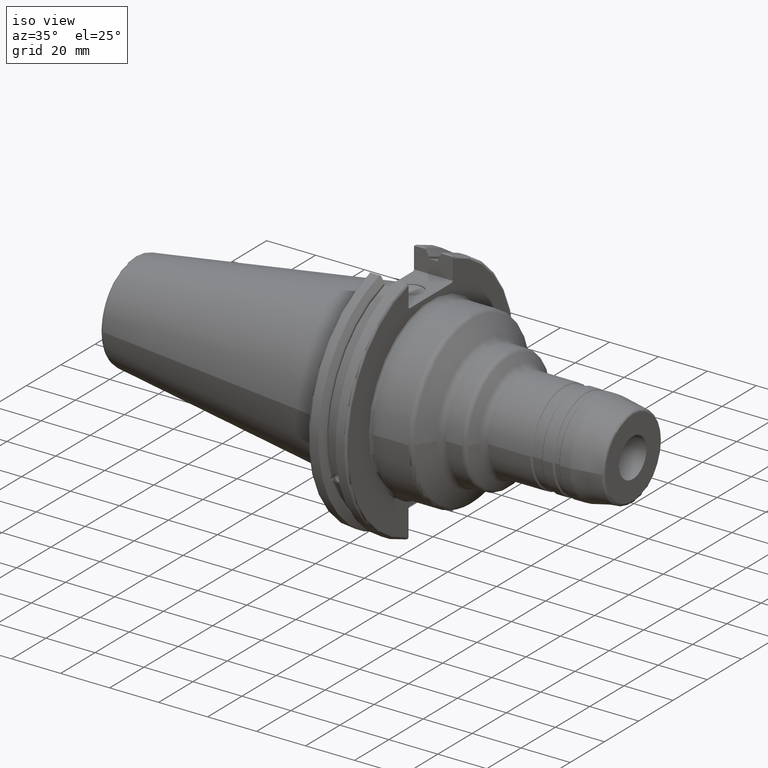
[diagram: clean part render]
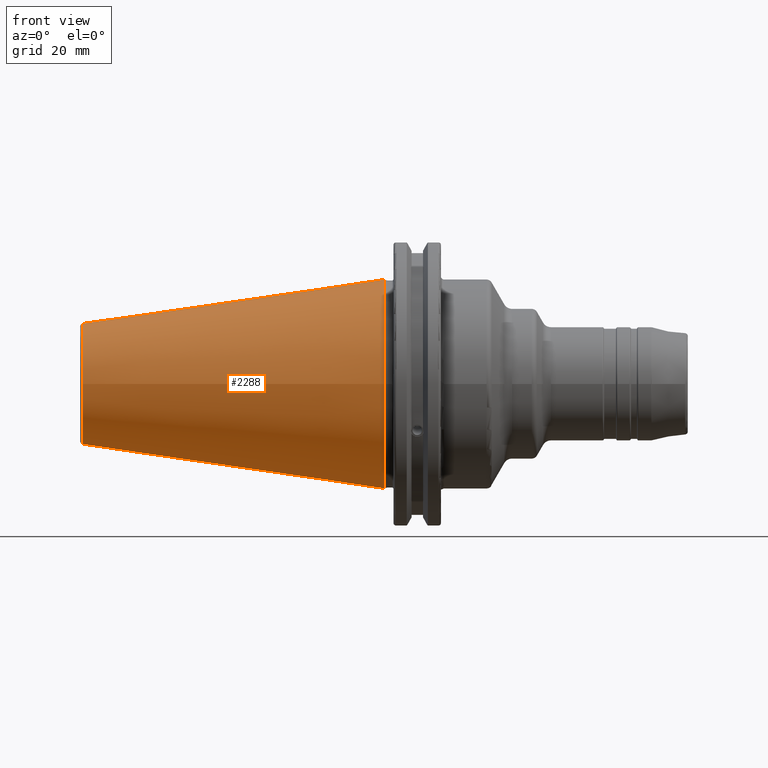
[diagram: tour spotlight — one face highlighted and labeled with its STEP entity id]
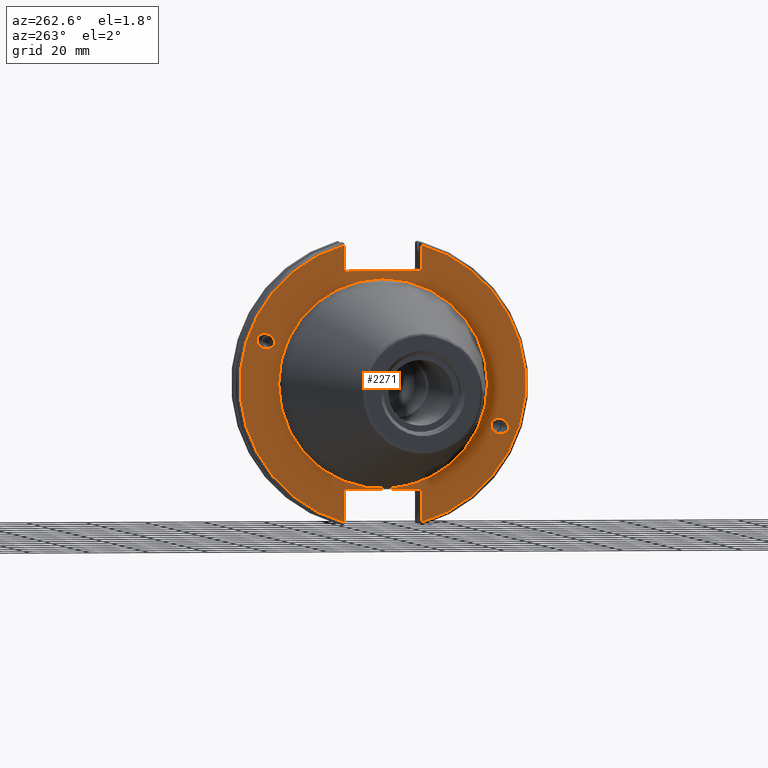
[diagram: tour spotlight — one face highlighted and labeled with its STEP entity id]
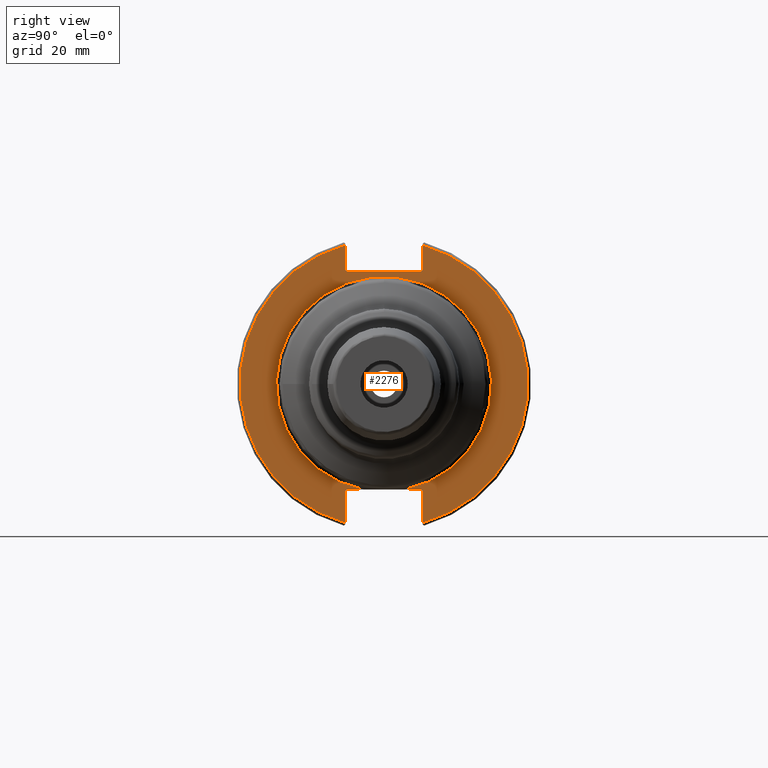
[diagram: tour spotlight — one face highlighted and labeled with its STEP entity id]
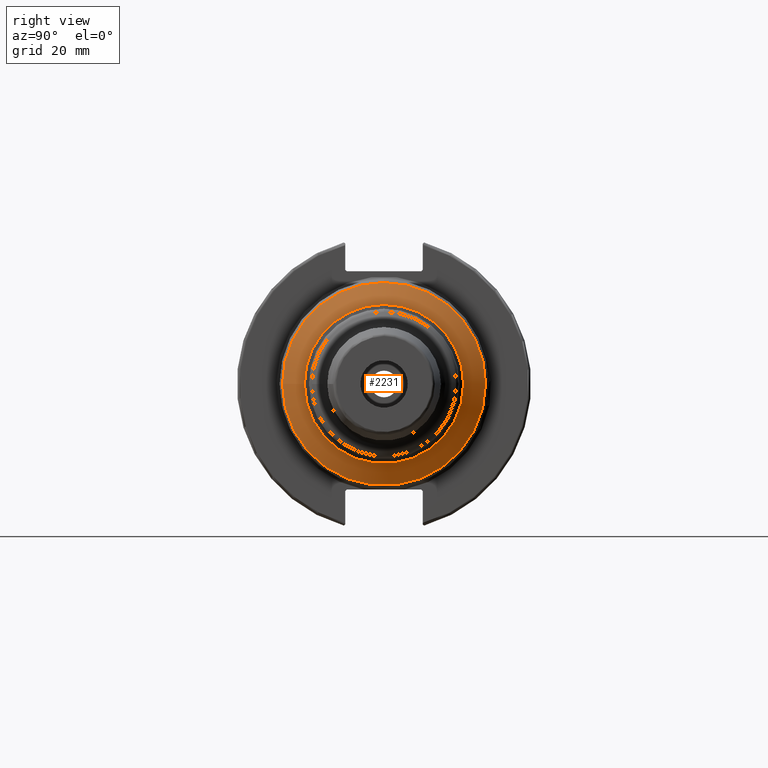
[diagram: tour spotlight — one face highlighted and labeled with its STEP entity id]
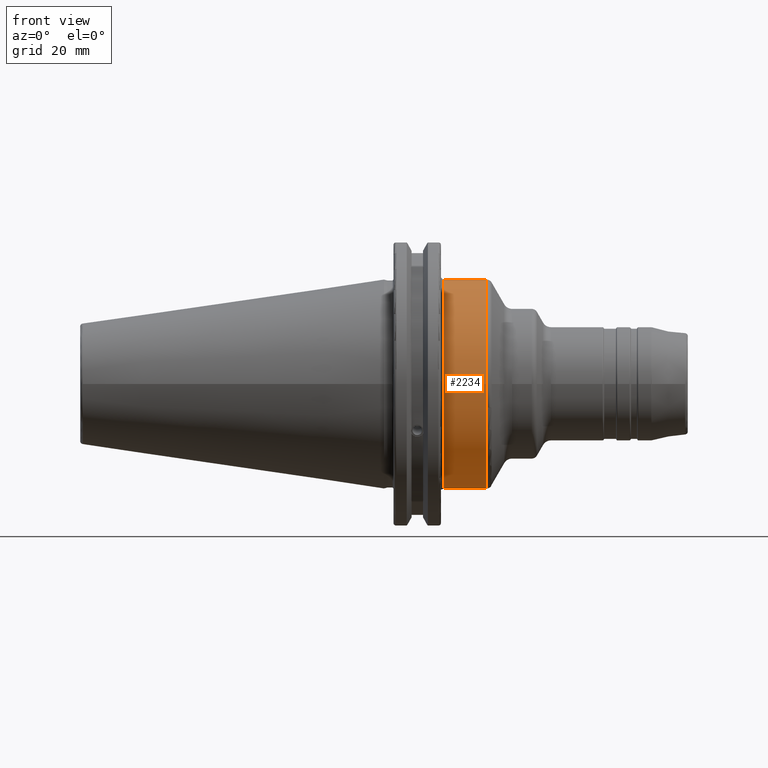
[diagram: tour spotlight — one face highlighted and labeled with its STEP entity id]
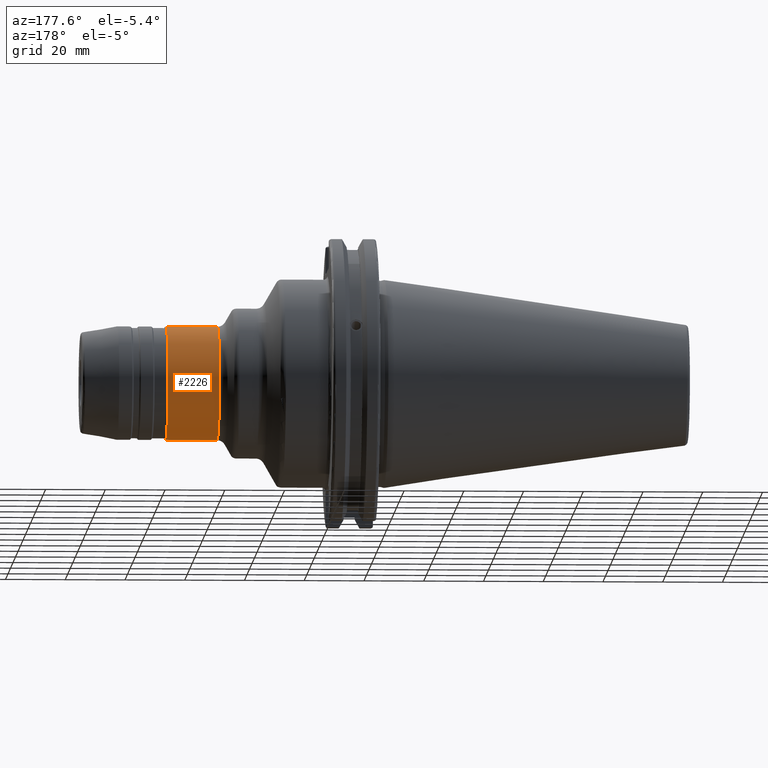
[diagram: tour spotlight — one face highlighted and labeled with its STEP entity id]
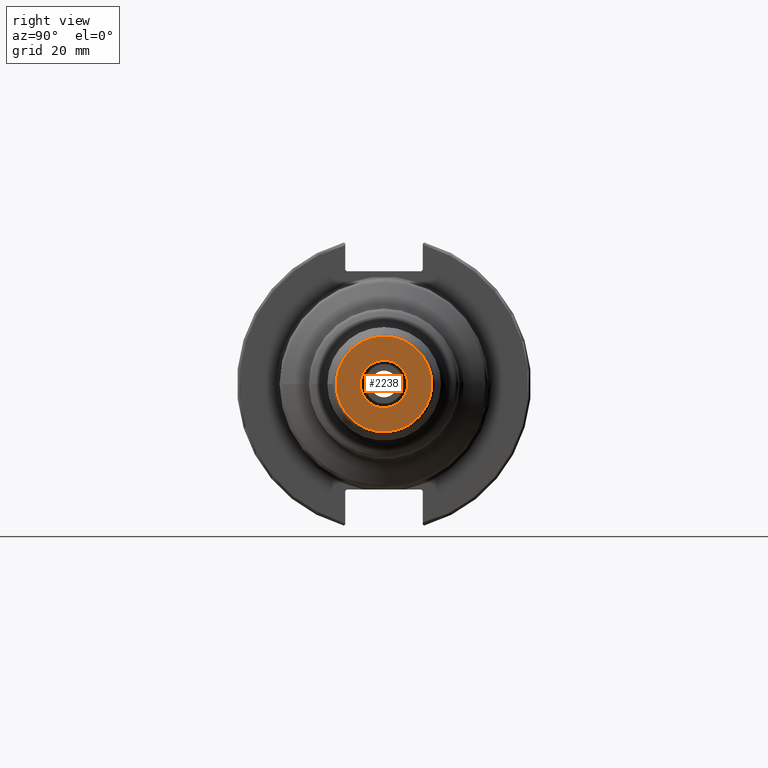
[diagram: tour spotlight — one face highlighted and labeled with its STEP entity id]
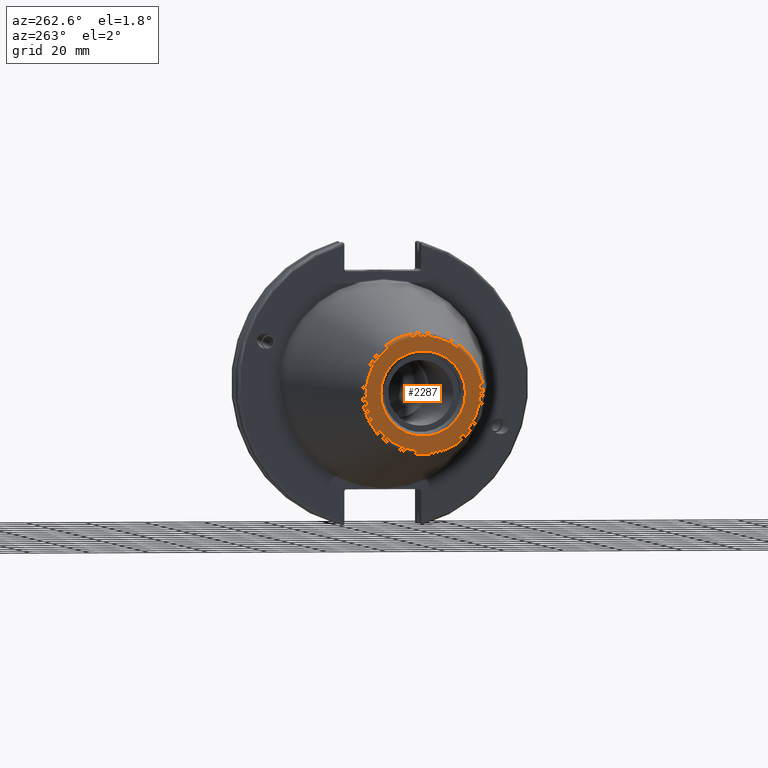
[diagram: tour spotlight — one face highlighted and labeled with its STEP entity id]
A machine part: a face-by-face anatomy tour. The part has 112 B-rep faces; the first image is the clean iso view, then the 8 largest visible faces are spotlighted one at a time (largest first), each with its STEP entity span.

Face 1 — front view, entity #2288. In plain terms, the highlighted conical surface has half-angle 8.297 deg.
Definition (entity closure, byte-faithful):
#164=CONICAL_SURFACE('',#2602,27.5166666666666,0.14481249823894);
#253=FACE_OUTER_BOUND('',#382,.T.);
#382=EDGE_LOOP('',(#2023,#2024,#2025,#2026,#2027,#2028,#2029));
#500=LINE('',#4514,#607);
#607=VECTOR('',#3273,27.5166666666666);
#799=CIRCLE('',#2593,20.233121911427);
#800=CIRCLE('',#2594,20.233121911427);
#804=CIRCLE('',#2598,20.233121911427);
#807=CIRCLE('',#2603,34.925);
#808=CIRCLE('',#2604,34.925);
#1062=VERTEX_POINT('',#4493);
#1063=VERTEX_POINT('',#4494);
#1064=VERTEX_POINT('',#4496);
#1069=VERTEX_POINT('',#4510);
#1070=VERTEX_POINT('',#4511);
#1400=EDGE_CURVE('',#1062,#1063,#799,.T.);
#1401=EDGE_CURVE('',#1063,#1064,#800,.T.);
#1405=EDGE_CURVE('',#1064,#1062,#804,.T.);
#1408=EDGE_CURVE('',#1069,#1070,#807,.T.);
#1409=EDGE_CURVE('',#1070,#1069,#808,.T.);
#1410=EDGE_CURVE('',#1070,#1063,#500,.T.);
#2023=ORIENTED_EDGE('',*,*,#1408,.F.);
#2024=ORIENTED_EDGE('',*,*,#1409,.F.);
#2025=ORIENTED_EDGE('',*,*,#1410,.T.);
#2026=ORIENTED_EDGE('',*,*,#1400,.F.);
#2027=ORIENTED_EDGE('',*,*,#1405,.F.);
#2028=ORIENTED_EDGE('',*,*,#1401,.F.);
#2029=ORIENTED_EDGE('',*,*,#1410,.F.);
#2288=ADVANCED_FACE('',(#253),#164,.T.);
#2593=AXIS2_PLACEMENT_3D('',#4495,#3249,#3250);
#2594=AXIS2_PLACEMENT_3D('',#4497,#3251,#3252);
#2598=AXIS2_PLACEMENT_3D('',#4503,#3259,#3260);
#2602=AXIS2_PLACEMENT_3D('',#4509,#3267,#3268);
#2603=AXIS2_PLACEMENT_3D('',#4512,#3269,#3270);
#2604=AXIS2_PLACEMENT_3D('',#4513,#3271,#3272);
#3249=DIRECTION('center_axis',(-1.,0.,0.));
#3250=DIRECTION('ref_axis',(0.,-1.,3.06161699786838E-17));
#3251=DIRECTION('center_axis',(-1.,0.,0.));
#3252=DIRECTION('ref_axis',(0.,-1.,3.06161699786838E-17));
#3259=DIRECTION('center_axis',(-1.,0.,0.));
#3260=DIRECTION('ref_axis',(0.,-1.,3.06161699786838E-17));
#3267=DIRECTION('center_axis',(1.,0.,0.));
#3268=DIRECTION('ref_axis',(0.,1.,0.));
#3269=DIRECTION('center_axis',(1.,0.,0.));
#3270=DIRECTION('ref_axis',(0.,0.,-1.));
#3271=DIRECTION('center_axis',(1.,0.,0.));
#3272=DIRECTION('ref_axis',(0.,0.,-1.));
#3273=DIRECTION('',(-0.989532981063281,0.144306893071729,1.76724974695192E-17));
#4493=CARTESIAN_POINT('',(-100.744306893072,20.233121911427,-6.19460699639681E-15));
#4494=CARTESIAN_POINT('',(-100.744306893072,-20.233121911427,-2.47784279855872E-15));
#4495=CARTESIAN_POINT('Origin',(-100.744306893072,0.,-3.09730349819841E-15));
#4496=CARTESIAN_POINT('',(-100.744306893072,-2.47784279855872E-15,20.233121911427));
#4497=CARTESIAN_POINT('Origin',(-100.744306893072,0.,-3.09730349819841E-15));
#4503=CARTESIAN_POINT('Origin',(-100.744306893072,0.,-3.09730349819841E-15));
#4509=CARTESIAN_POINT('Origin',(-50.8,0.,0.));
#4510=CARTESIAN_POINT('',(0.,34.925,0.));
#4511=CARTESIAN_POINT('',(-8.88178419700125E-15,-34.925,-4.27707894602213E-15));
#4512=CARTESIAN_POINT('Origin',(0.,0.,0.));
#4513=CARTESIAN_POINT('Origin',(0.,0.,0.));
#4514=CARTESIAN_POINT('',(-50.8,-27.5166666666666,-3.3698197756538E-15));

Face 2 — auxiliary view, entity #2271. In plain terms, the highlighted planar face has unit normal (-1, 0, 0).
Definition (entity closure, byte-faithful):
#31=ELLIPSE('',#2514,3.05193647190364,2.5);
#32=ELLIPSE('',#2553,3.05193647190364,2.5);
#44=PLANE('',#2566);
#104=FACE_BOUND('',#362,.T.);
#105=FACE_BOUND('',#363,.T.);
#106=FACE_BOUND('',#364,.T.);
#236=FACE_OUTER_BOUND('',#361,.T.);
#361=EDGE_LOOP('',(#1895,#1896,#1897,#1898,#1899,#1900,#1901,#1902,#1903,
#1904,#1905,#1906));
#362=EDGE_LOOP('',(#1907));
#363=EDGE_LOOP('',(#1908));
#364=EDGE_LOOP('',(#1909,#1910));
#462=LINE('',#4252,#569);
#463=LINE('',#4254,#570);
#464=LINE('',#4256,#571);
#465=LINE('',#4258,#572);
#466=LINE('',#4260,#573);
#467=LINE('',#4264,#574);
#468=LINE('',#4266,#575);
#469=LINE('',#4268,#576);
#470=LINE('',#4270,#577);
#471=LINE('',#4271,#578);
#569=VECTOR('',#3161,10.);
#570=VECTOR('',#3162,10.);
#571=VECTOR('',#3163,10.);
#572=VECTOR('',#3164,10.);
#573=VECTOR('',#3165,10.);
#574=VECTOR('',#3168,10.);
#575=VECTOR('',#3169,10.);
#576=VECTOR('',#3170,10.);
#577=VECTOR('',#3171,10.);
#578=VECTOR('',#3172,10.);
#784=CIRCLE('',#2562,35.125);
#785=CIRCLE('',#2563,35.125);
#788=CIRCLE('',#2567,48.2125);
#789=CIRCLE('',#2568,48.2125);
#959=VERTEX_POINT('',#3953);
#1002=VERTEX_POINT('',#4222);
#1008=VERTEX_POINT('',#4239);
#1009=VERTEX_POINT('',#4241);
#1011=VERTEX_POINT('',#4248);
#1012=VERTEX_POINT('',#4249);
#1013=VERTEX_POINT('',#4251);
#1014=VERTEX_POINT('',#4253);
#1015=VERTEX_POINT('',#4255);
#1016=VERTEX_POINT('',#4257);
#1017=VERTEX_POINT('',#4259);
#1018=VERTEX_POINT('',#4261);
#1019=VERTEX_POINT('',#4263);
#1020=VERTEX_POINT('',#4265);
#1021=VERTEX_POINT('',#4267);
#1022=VERTEX_POINT('',#4269);
#1261=EDGE_CURVE('',#959,#959,#31,.T.);
#1317=EDGE_CURVE('',#1002,#1002,#32,.T.);
#1325=EDGE_CURVE('',#1008,#1009,#784,.T.);
#1326=EDGE_CURVE('',#1009,#1008,#785,.T.);
#1329=EDGE_CURVE('',#1011,#1012,#788,.T.);
#1330=EDGE_CURVE('',#1011,#1013,#462,.T.);
#1331=EDGE_CURVE('',#1014,#1013,#463,.T.);
#1332=EDGE_CURVE('',#1014,#1015,#464,.T.);
#1333=EDGE_CURVE('',#1016,#1015,#465,.T.);
#1334=EDGE_CURVE('',#1016,#1017,#466,.T.);
#1335=EDGE_CURVE('',#1018,#1017,#789,.T.);
#1336=EDGE_CURVE('',#1018,#1019,#467,.T.);
#1337=EDGE_CURVE('',#1020,#1019,#468,.T.);
#1338=EDGE_CURVE('',#1020,#1021,#469,.T.);
#1339=EDGE_CURVE('',#1022,#1021,#470,.T.);
#1340=EDGE_CURVE('',#1022,#1012,#471,.T.);
#1895=ORIENTED_EDGE('',*,*,#1329,.F.);
#1896=ORIENTED_EDGE('',*,*,#1330,.T.);
#1897=ORIENTED_EDGE('',*,*,#1331,.F.);
#1898=ORIENTED_EDGE('',*,*,#1332,.T.);
#1899=ORIENTED_EDGE('',*,*,#1333,.F.);
#1900=ORIENTED_EDGE('',*,*,#1334,.T.);
#1901=ORIENTED_EDGE('',*,*,#1335,.F.);
#1902=ORIENTED_EDGE('',*,*,#1336,.T.);
#1903=ORIENTED_EDGE('',*,*,#1337,.F.);
#1904=ORIENTED_EDGE('',*,*,#1338,.T.);
#1905=ORIENTED_EDGE('',*,*,#1339,.F.);
#1906=ORIENTED_EDGE('',*,*,#1340,.T.);
#1907=ORIENTED_EDGE('',*,*,#1261,.T.);
#1908=ORIENTED_EDGE('',*,*,#1317,.T.);
#1909=ORIENTED_EDGE('',*,*,#1326,.F.);
#1910=ORIENTED_EDGE('',*,*,#1325,.F.);
#2271=ADVANCED_FACE('',(#236,#104,#105,#106),#44,.T.);
#2514=AXIS2_PLACEMENT_3D('',#3955,#3035,#3036);
#2553=AXIS2_PLACEMENT_3D('',#4224,#3129,#3130);
#2562=AXIS2_PLACEMENT_3D('',#4242,#3149,#3150);
#2563=AXIS2_PLACEMENT_3D('',#4243,#3151,#3152);
#2566=AXIS2_PLACEMENT_3D('',#4247,#3157,#3158);
#2567=AXIS2_PLACEMENT_3D('',#4250,#3159,#3160);
#2568=AXIS2_PLACEMENT_3D('',#4262,#3166,#3167);
#3035=DIRECTION('center_axis',(1.,0.,0.));
#3036=DIRECTION('ref_axis',(0.,-0.939692620785907,-0.342020143325671));
#3129=DIRECTION('center_axis',(1.,0.,0.));
#3130=DIRECTION('ref_axis',(0.,0.939692620785907,0.342020143325672));
#3149=DIRECTION('center_axis',(-1.,0.,0.));
#3150=DIRECTION('ref_axis',(0.,-1.,1.83697019872103E-16));
#3151=DIRECTION('center_axis',(-1.,0.,0.));
#3152=DIRECTION('ref_axis',(0.,-1.,1.83697019872103E-16));
#3157=DIRECTION('center_axis',(-1.,0.,0.));
#3158=DIRECTION('ref_axis',(0.,0.,1.));
#3159=DIRECTION('center_axis',(1.,0.,0.));
#3160=DIRECTION('ref_axis',(0.,-1.,1.60812264967664E-16));
#3161=DIRECTION('',(0.,0.,-1.));
#3162=DIRECTION('',(0.,-0.707106781186549,0.707106781186546));
#3163=DIRECTION('',(0.,1.,0.));
#3164=DIRECTION('',(0.,-0.707106781186549,-0.707106781186546));
#3165=DIRECTION('',(0.,0.,1.));
#3166=DIRECTION('center_axis',(1.,0.,0.));
#3167=DIRECTION('ref_axis',(0.,1.,-6.12323399573677E-17));
#3168=DIRECTION('',(0.,0.,1.));
#3169=DIRECTION('',(0.,0.707106781186549,-0.707106781186546));
#3170=DIRECTION('',(0.,-1.,0.));
#3171=DIRECTION('',(0.,0.707106781186549,0.707106781186546));
#3172=DIRECTION('',(0.,0.,-1.));
#3953=CARTESIAN_POINT('',(3.175,-36.5992078912529,-13.3210222701368));
#3955=CARTESIAN_POINT('Origin',(3.175,-39.4670900730082,-14.3648460196781));
#4222=CARTESIAN_POINT('',(3.175,36.5992078912529,13.3210222701368));
#4224=CARTESIAN_POINT('Origin',(3.175,39.4670900730082,14.3648460196781));
#4239=CARTESIAN_POINT('',(3.175,-4.30157188200508E-15,35.125));
#4241=CARTESIAN_POINT('',(3.175,35.125,-1.07539297050127E-14));
#4242=CARTESIAN_POINT('Origin',(3.175,0.,0.));
#4243=CARTESIAN_POINT('Origin',(3.175,0.,0.));
#4247=CARTESIAN_POINT('Origin',(3.175,49.2125,0.));
#4248=CARTESIAN_POINT('',(3.175,-12.95,46.4407434937254));
#4249=CARTESIAN_POINT('',(3.175,-12.95,-46.4407434937254));
#4250=CARTESIAN_POINT('Origin',(3.175,0.,0.));
#4251=CARTESIAN_POINT('',(3.175,-12.95,38.219));
#4252=CARTESIAN_POINT('',(3.175,-12.95,18.8595));
#4253=CARTESIAN_POINT('',(3.175,-12.45,37.719));
#4254=CARTESIAN_POINT('',(3.175,12.2703750000001,12.998625));
#4255=CARTESIAN_POINT('',(3.175,12.45,37.719));
#4256=CARTESIAN_POINT('',(3.175,24.60625,37.719));
#4257=CARTESIAN_POINT('',(3.175,12.95,38.219));
#4258=CARTESIAN_POINT('',(3.175,12.335875,37.604875));
#4259=CARTESIAN_POINT('',(3.175,12.95,46.4407434937254));
#4260=CARTESIAN_POINT('',(3.175,12.95,18.8595));
#4261=CARTESIAN_POINT('',(3.175,12.95,-46.4407434937254));
#4262=CARTESIAN_POINT('Origin',(3.175,0.,0.));
#4263=CARTESIAN_POINT('',(3.175,12.95,-35.806));
#4264=CARTESIAN_POINT('',(3.175,12.95,-17.653));
#4265=CARTESIAN_POINT('',(3.175,12.45,-35.306));
#4266=CARTESIAN_POINT('',(3.175,12.939125,-35.795125));
#4267=CARTESIAN_POINT('',(3.175,-12.45,-35.306));
#4268=CARTESIAN_POINT('',(3.175,24.60625,-35.306));
#4269=CARTESIAN_POINT('',(3.175,-12.95,-35.806));
#4270=CARTESIAN_POINT('',(3.175,11.6671250000001,-11.188875));
#4271=CARTESIAN_POINT('',(3.175,-12.95,-17.653));

Face 3 — right view, entity #2276. In plain terms, the highlighted planar face has unit normal (1, 0, 0).
Definition (entity closure, byte-faithful):
#47=PLANE('',#2577);
#241=FACE_OUTER_BOUND('',#369,.T.);
#369=EDGE_LOOP('',(#1940,#1941,#1942,#1943,#1944,#1945,#1946,#1947,#1948,
#1949,#1950,#1951,#1952,#1953));
#475=LINE('',#4325,#582);
#478=LINE('',#4340,#585);
#479=LINE('',#4341,#586);
#480=LINE('',#4343,#587);
#481=LINE('',#4345,#588);
#482=LINE('',#4347,#589);
#483=LINE('',#4349,#590);
#484=LINE('',#4351,#591);
#485=LINE('',#4355,#592);
#486=LINE('',#4357,#593);
#487=LINE('',#4358,#594);
#582=VECTOR('',#3192,10.);
#585=VECTOR('',#3197,10.);
#586=VECTOR('',#3198,10.);
#587=VECTOR('',#3199,10.);
#588=VECTOR('',#3200,10.);
#589=VECTOR('',#3201,10.);
#590=VECTOR('',#3202,10.);
#591=VECTOR('',#3203,10.);
#592=VECTOR('',#3206,10.);
#593=VECTOR('',#3207,10.);
#594=VECTOR('',#3208,10.);
#740=CIRCLE('',#2485,35.95);
#792=CIRCLE('',#2573,48.2125);
#794=CIRCLE('',#2578,48.2125);
#927=VERTEX_POINT('',#3722);
#928=VERTEX_POINT('',#3729);
#1026=VERTEX_POINT('',#4280);
#1027=VERTEX_POINT('',#4287);
#1033=VERTEX_POINT('',#4324);
#1035=VERTEX_POINT('',#4339);
#1036=VERTEX_POINT('',#4342);
#1037=VERTEX_POINT('',#4344);
#1038=VERTEX_POINT('',#4346);
#1039=VERTEX_POINT('',#4348);
#1040=VERTEX_POINT('',#4350);
#1041=VERTEX_POINT('',#4352);
#1042=VERTEX_POINT('',#4354);
#1043=VERTEX_POINT('',#4356);
#1222=EDGE_CURVE('',#927,#928,#740,.T.);
#1345=EDGE_CURVE('',#1026,#1027,#792,.T.);
#1353=EDGE_CURVE('',#1033,#1027,#475,.T.);
#1358=EDGE_CURVE('',#927,#1035,#478,.T.);
#1359=EDGE_CURVE('',#1033,#1035,#479,.T.);
#1360=EDGE_CURVE('',#1026,#1036,#480,.T.);
#1361=EDGE_CURVE('',#1037,#1036,#481,.T.);
#1362=EDGE_CURVE('',#1037,#1038,#482,.T.);
#1363=EDGE_CURVE('',#1039,#1038,#483,.T.);
#1364=EDGE_CURVE('',#1039,#1040,#484,.T.);
#1365=EDGE_CURVE('',#1041,#1040,#794,.T.);
#1366=EDGE_CURVE('',#1041,#1042,#485,.T.);
#1367=EDGE_CURVE('',#1043,#1042,#486,.T.);
#1368=EDGE_CURVE('',#1043,#928,#487,.T.);
#1940=ORIENTED_EDGE('',*,*,#1222,.F.);
#1941=ORIENTED_EDGE('',*,*,#1358,.T.);
#1942=ORIENTED_EDGE('',*,*,#1359,.F.);
#1943=ORIENTED_EDGE('',*,*,#1353,.T.);
#1944=ORIENTED_EDGE('',*,*,#1345,.F.);
#1945=ORIENTED_EDGE('',*,*,#1360,.T.);
#1946=ORIENTED_EDGE('',*,*,#1361,.F.);
#1947=ORIENTED_EDGE('',*,*,#1362,.T.);
#1948=ORIENTED_EDGE('',*,*,#1363,.F.);
#1949=ORIENTED_EDGE('',*,*,#1364,.T.);
#1950=ORIENTED_EDGE('',*,*,#1365,.F.);
#1951=ORIENTED_EDGE('',*,*,#1366,.T.);
#1952=ORIENTED_EDGE('',*,*,#1367,.F.);
#1953=ORIENTED_EDGE('',*,*,#1368,.T.);
#2276=ADVANCED_FACE('',(#241),#47,.T.);
#2485=AXIS2_PLACEMENT_3D('',#3730,#2965,#2966);
#2573=AXIS2_PLACEMENT_3D('',#4288,#3182,#3183);
#2577=AXIS2_PLACEMENT_3D('',#4338,#3195,#3196);
#2578=AXIS2_PLACEMENT_3D('',#4353,#3204,#3205);
#2965=DIRECTION('center_axis',(1.,0.,0.));
#2966=DIRECTION('ref_axis',(0.,-1.,-1.22464679914735E-16));
#3182=DIRECTION('center_axis',(-1.,0.,0.));
#3183=DIRECTION('ref_axis',(0.,1.,-6.12323399573677E-17));
#3192=DIRECTION('',(0.,0.,-1.));
#3195=DIRECTION('center_axis',(1.,0.,0.));
#3196=DIRECTION('ref_axis',(0.,0.,-1.));
#3197=DIRECTION('',(0.,1.,0.));
#3198=DIRECTION('',(0.,-0.707106781186549,0.707106781186546));
#3199=DIRECTION('',(0.,0.,-1.));
#3200=DIRECTION('',(0.,0.707106781186549,0.707106781186546));
#3201=DIRECTION('',(0.,-1.,0.));
#3202=DIRECTION('',(0.,0.707106781186549,-0.707106781186546));
#3203=DIRECTION('',(0.,0.,1.));
#3204=DIRECTION('center_axis',(-1.,0.,0.));
#3205=DIRECTION('ref_axis',(0.,-1.,1.60812264967664E-16));
#3206=DIRECTION('',(0.,0.,1.));
#3207=DIRECTION('',(0.,-0.707106781186549,-0.707106781186546));
#3208=DIRECTION('',(0.,1.,0.));
#3722=CARTESIAN_POINT('',(19.05,6.77413197391373,-35.306));
#3729=CARTESIAN_POINT('',(19.05,-6.77413197391373,-35.306));
#3730=CARTESIAN_POINT('Origin',(19.05,0.,0.));
#4280=CARTESIAN_POINT('',(19.05,12.95,46.4407434937254));
#4287=CARTESIAN_POINT('',(19.05,12.95,-46.4407434937254));
#4288=CARTESIAN_POINT('Origin',(19.05,0.,0.));
#4324=CARTESIAN_POINT('',(19.05,12.95,-35.806));
#4325=CARTESIAN_POINT('',(19.05,12.95,-17.653));
#4338=CARTESIAN_POINT('Origin',(19.05,0.,0.));
#4339=CARTESIAN_POINT('',(19.05,12.45,-35.306));
#4340=CARTESIAN_POINT('',(19.05,-3.33066907387547E-15,-35.306));
#4341=CARTESIAN_POINT('',(19.05,0.635999999999982,-23.492));
#4342=CARTESIAN_POINT('',(19.05,12.95,38.219));
#4343=CARTESIAN_POINT('',(19.05,12.95,18.8595));
#4344=CARTESIAN_POINT('',(19.05,12.45,37.719));
#4345=CARTESIAN_POINT('',(19.05,0.0327499999999836,25.30175));
#4346=CARTESIAN_POINT('',(19.05,-12.45,37.719));
#4347=CARTESIAN_POINT('',(19.05,0.,37.719));
#4348=CARTESIAN_POINT('',(19.05,-12.95,38.219));
#4349=CARTESIAN_POINT('',(19.05,-0.0327499999999817,25.30175));
#4350=CARTESIAN_POINT('',(19.05,-12.95,46.4407434937254));
#4351=CARTESIAN_POINT('',(19.05,-12.95,18.8595));
#4352=CARTESIAN_POINT('',(19.05,-12.95,-46.4407434937254));
#4353=CARTESIAN_POINT('Origin',(19.05,0.,0.));
#4354=CARTESIAN_POINT('',(19.05,-12.95,-35.806));
#4355=CARTESIAN_POINT('',(19.05,-12.95,-17.653));
#4356=CARTESIAN_POINT('',(19.05,-12.45,-35.306));
#4357=CARTESIAN_POINT('',(19.05,-0.635999999999989,-23.492));
#4358=CARTESIAN_POINT('',(19.05,-3.33066907387547E-15,-35.306));

Face 4 — right view, entity #2231. In plain terms, the highlighted conical surface has half-angle 60 deg.
Definition (entity closure, byte-faithful):
#157=CONICAL_SURFACE('',#2452,30.0375,1.0471975511966);
#196=FACE_OUTER_BOUND('',#310,.T.);
#310=EDGE_LOOP('',(#1646,#1647,#1648,#1649,#1650,#1651,#1652,#1653));
#429=LINE('',#3668,#536);
#536=VECTOR('',#2898,30.0375);
#706=CIRCLE('',#2441,26.625);
#711=CIRCLE('',#2446,26.625);
#712=CIRCLE('',#2447,26.625);
#716=CIRCLE('',#2453,33.95);
#717=CIRCLE('',#2454,33.95);
#718=CIRCLE('',#2455,33.95);
#898=VERTEX_POINT('',#3645);
#899=VERTEX_POINT('',#3646);
#903=VERTEX_POINT('',#3655);
#907=VERTEX_POINT('',#3667);
#908=VERTEX_POINT('',#3669);
#909=VERTEX_POINT('',#3671);
#1183=EDGE_CURVE('',#898,#899,#706,.T.);
#1188=EDGE_CURVE('',#899,#903,#711,.T.);
#1189=EDGE_CURVE('',#903,#898,#712,.T.);
#1194=EDGE_CURVE('',#903,#907,#429,.T.);
#1195=EDGE_CURVE('',#908,#907,#716,.T.);
#1196=EDGE_CURVE('',#909,#908,#717,.T.);
#1197=EDGE_CURVE('',#907,#909,#718,.T.);
#1646=ORIENTED_EDGE('',*,*,#1183,.F.);
#1647=ORIENTED_EDGE('',*,*,#1189,.F.);
#1648=ORIENTED_EDGE('',*,*,#1194,.T.);
#1649=ORIENTED_EDGE('',*,*,#1195,.F.);
#1650=ORIENTED_EDGE('',*,*,#1196,.F.);
#1651=ORIENTED_EDGE('',*,*,#1197,.F.);
#1652=ORIENTED_EDGE('',*,*,#1194,.F.);
#1653=ORIENTED_EDGE('',*,*,#1188,.F.);
#2231=ADVANCED_FACE('',(#196),#157,.T.);
#2441=AXIS2_PLACEMENT_3D('',#3647,#2873,#2874);
#2446=AXIS2_PLACEMENT_3D('',#3656,#2883,#2884);
#2447=AXIS2_PLACEMENT_3D('',#3657,#2885,#2886);
#2452=AXIS2_PLACEMENT_3D('',#3666,#2896,#2897);
#2453=AXIS2_PLACEMENT_3D('',#3670,#2899,#2900);
#2454=AXIS2_PLACEMENT_3D('',#3672,#2901,#2902);
#2455=AXIS2_PLACEMENT_3D('',#3673,#2903,#2904);
#2873=DIRECTION('center_axis',(1.,0.,0.));
#2874=DIRECTION('ref_axis',(0.,-1.,3.06161699786838E-17));
#2883=DIRECTION('center_axis',(1.,0.,0.));
#2884=DIRECTION('ref_axis',(0.,-1.,3.06161699786838E-17));
#2885=DIRECTION('center_axis',(1.,0.,0.));
#2886=DIRECTION('ref_axis',(0.,-1.,3.06161699786838E-17));
#2896=DIRECTION('center_axis',(-1.,0.,0.));
#2897=DIRECTION('ref_axis',(0.,1.,0.));
#2898=DIRECTION('',(-0.5,-0.866025403784438,-1.06057523872491E-16));
#2899=DIRECTION('center_axis',(-1.,0.,0.));
#2900=DIRECTION('ref_axis',(0.,-1.,3.06161699786838E-17));
#2901=DIRECTION('center_axis',(-1.,0.,0.));
#2902=DIRECTION('ref_axis',(0.,-1.,3.06161699786838E-17));
#2903=DIRECTION('center_axis',(-1.,0.,0.));
#2904=DIRECTION('ref_axis',(0.,-1.,3.06161699786838E-17));
#3645=CARTESIAN_POINT('',(40.2339745962156,26.625,-1.63031105136491E-15));
#3646=CARTESIAN_POINT('',(40.2339745962156,-3.26062210272983E-15,26.625));
#3647=CARTESIAN_POINT('Origin',(40.2339745962156,0.,-4.07577762841228E-15));
#3655=CARTESIAN_POINT('',(40.2339745962156,-26.625,-3.26062210272982E-15));
#3656=CARTESIAN_POINT('Origin',(40.2339745962156,0.,-4.07577762841228E-15));
#3657=CARTESIAN_POINT('Origin',(40.2339745962156,0.,-4.07577762841228E-15));
#3666=CARTESIAN_POINT('Origin',(38.263766802606,0.,0.));
#3667=CARTESIAN_POINT('',(36.0048838744015,-33.95,-4.15767588310526E-15));
#3668=CARTESIAN_POINT('',(38.263766802606,-30.0375,-3.67853282293886E-15));
#3669=CARTESIAN_POINT('',(36.0048838744015,33.95,-1.03941897077632E-14));
#3670=CARTESIAN_POINT('Origin',(36.0048838744015,0.,-5.19709485388158E-15));
#3671=CARTESIAN_POINT('',(36.0048838744015,-4.15767588310526E-15,33.95));
#3672=CARTESIAN_POINT('Origin',(36.0048838744015,0.,-5.19709485388158E-15));
#3673=CARTESIAN_POINT('Origin',(36.0048838744015,0.,-5.19709485388158E-15));

Face 5 — front view, entity #2234. In plain terms, the highlighted cylindrical surface (bore or boss wall) has radius 34.95 mm, axis along (1, 0, 0).
Definition (entity closure, byte-faithful):
#199=FACE_OUTER_BOUND('',#313,.T.);
#313=EDGE_LOOP('',(#1670,#1671,#1672,#1673,#1674,#1675,#1676,#1677));
#430=LINE('',#3686,#537);
#537=VECTOR('',#2921,34.95);
#721=CIRCLE('',#2460,34.95);
#722=CIRCLE('',#2461,34.95);
#723=CIRCLE('',#2462,34.95);
#724=CIRCLE('',#2464,34.95);
#725=CIRCLE('',#2465,34.95);
#726=CIRCLE('',#2466,34.95);
#910=VERTEX_POINT('',#3677);
#911=VERTEX_POINT('',#3679);
#912=VERTEX_POINT('',#3681);
#913=VERTEX_POINT('',#3685);
#914=VERTEX_POINT('',#3687);
#915=VERTEX_POINT('',#3689);
#1200=EDGE_CURVE('',#910,#911,#721,.T.);
#1201=EDGE_CURVE('',#911,#912,#722,.T.);
#1202=EDGE_CURVE('',#912,#910,#723,.T.);
#1203=EDGE_CURVE('',#911,#913,#430,.T.);
#1204=EDGE_CURVE('',#914,#913,#724,.T.);
#1205=EDGE_CURVE('',#915,#914,#725,.T.);
#1206=EDGE_CURVE('',#913,#915,#726,.T.);
#1670=ORIENTED_EDGE('',*,*,#1202,.F.);
#1671=ORIENTED_EDGE('',*,*,#1201,.F.);
#1672=ORIENTED_EDGE('',*,*,#1203,.T.);
#1673=ORIENTED_EDGE('',*,*,#1204,.F.);
#1674=ORIENTED_EDGE('',*,*,#1205,.F.);
#1675=ORIENTED_EDGE('',*,*,#1206,.F.);
#1676=ORIENTED_EDGE('',*,*,#1203,.F.);
#1677=ORIENTED_EDGE('',*,*,#1200,.F.);
#2180=CYLINDRICAL_SURFACE('',#2463,34.95);
#2234=ADVANCED_FACE('',(#199),#2180,.T.);
#2460=AXIS2_PLACEMENT_3D('',#3680,#2913,#2914);
#2461=AXIS2_PLACEMENT_3D('',#3682,#2915,#2916);
#2462=AXIS2_PLACEMENT_3D('',#3683,#2917,#2918);
#2463=AXIS2_PLACEMENT_3D('',#3684,#2919,#2920);
#2464=AXIS2_PLACEMENT_3D('',#3688,#2922,#2923);
#2465=AXIS2_PLACEMENT_3D('',#3690,#2924,#2925);
#2466=AXIS2_PLACEMENT_3D('',#3691,#2926,#2927);
#2913=DIRECTION('center_axis',(1.,0.,0.));
#2914=DIRECTION('ref_axis',(0.,-1.,1.83697019872103E-16));
#2915=DIRECTION('center_axis',(1.,0.,0.));
#2916=DIRECTION('ref_axis',(0.,-1.,1.83697019872103E-16));
#2917=DIRECTION('center_axis',(1.,0.,0.));
#2918=DIRECTION('ref_axis',(0.,-1.,1.83697019872103E-16));
#2919=DIRECTION('center_axis',(1.,0.,0.));
#2920=DIRECTION('ref_axis',(0.,1.,0.));
#2921=DIRECTION('',(-1.,0.,0.));
#2922=DIRECTION('center_axis',(-1.,0.,0.));
#2923=DIRECTION('ref_axis',(0.,-1.,-1.22464679914735E-16));
#2924=DIRECTION('center_axis',(-1.,0.,0.));
#2925=DIRECTION('ref_axis',(0.,-1.,-1.22464679914735E-16));
#2926=DIRECTION('center_axis',(-1.,0.,0.));
#2927=DIRECTION('ref_axis',(0.,-1.,-1.22464679914735E-16));
#3677=CARTESIAN_POINT('',(34.2728330668327,-4.28014056302E-15,34.95));
#3679=CARTESIAN_POINT('',(34.2728330668327,-34.95,-4.28014056302E-15));
#3680=CARTESIAN_POINT('Origin',(34.2728330668327,0.,0.));
#3681=CARTESIAN_POINT('',(34.2728330668327,34.95,-2.14007028151E-15));
#3682=CARTESIAN_POINT('Origin',(34.2728330668327,0.,0.));
#3683=CARTESIAN_POINT('Origin',(34.2728330668327,0.,0.));
#3684=CARTESIAN_POINT('Origin',(27.238766802606,0.,0.));
#3685=CARTESIAN_POINT('',(20.05,-34.95,-4.28014056302E-15));
#3686=CARTESIAN_POINT('',(27.238766802606,-34.95,-4.28014056302E-15));
#3687=CARTESIAN_POINT('',(20.05,-4.28014056302E-15,-34.95));
#3688=CARTESIAN_POINT('Origin',(20.05,0.,0.));
#3689=CARTESIAN_POINT('',(20.05,34.95,0.));
#3690=CARTESIAN_POINT('Origin',(20.05,0.,0.));
#3691=CARTESIAN_POINT('Origin',(20.05,0.,0.));

Face 6 — auxiliary view, entity #2226. In plain terms, the highlighted cylindrical surface (bore or boss wall) has radius 19 mm, axis along (1, 0, 0).
Definition (entity closure, byte-faithful):
#191=FACE_OUTER_BOUND('',#305,.T.);
#305=EDGE_LOOP('',(#1606,#1607,#1608,#1609,#1610,#1611,#1612,#1613));
#426=LINE('',#3622,#533);
#533=VECTOR('',#2845,19.);
#693=CIRCLE('',#2424,19.);
#694=CIRCLE('',#2425,19.);
#695=CIRCLE('',#2426,19.);
#696=CIRCLE('',#2428,19.);
#697=CIRCLE('',#2429,19.);
#698=CIRCLE('',#2430,19.);
#886=VERTEX_POINT('',#3613);
#887=VERTEX_POINT('',#3615);
#888=VERTEX_POINT('',#3617);
#889=VERTEX_POINT('',#3621);
#890=VERTEX_POINT('',#3623);
#891=VERTEX_POINT('',#3625);
#1168=EDGE_CURVE('',#886,#887,#693,.T.);
#1169=EDGE_CURVE('',#887,#888,#694,.T.);
#1170=EDGE_CURVE('',#888,#886,#695,.T.);
#1171=EDGE_CURVE('',#887,#889,#426,.T.);
#1172=EDGE_CURVE('',#890,#889,#696,.T.);
#1173=EDGE_CURVE('',#891,#890,#697,.T.);
#1174=EDGE_CURVE('',#889,#891,#698,.T.);
#1606=ORIENTED_EDGE('',*,*,#1170,.F.);
#1607=ORIENTED_EDGE('',*,*,#1169,.F.);
#1608=ORIENTED_EDGE('',*,*,#1171,.T.);
#1609=ORIENTED_EDGE('',*,*,#1172,.F.);
#1610=ORIENTED_EDGE('',*,*,#1173,.F.);
#1611=ORIENTED_EDGE('',*,*,#1174,.F.);
#1612=ORIENTED_EDGE('',*,*,#1171,.F.);
#1613=ORIENTED_EDGE('',*,*,#1168,.F.);
#2178=CYLINDRICAL_SURFACE('',#2427,19.);
#2226=ADVANCED_FACE('',(#191),#2178,.T.);
#2424=AXIS2_PLACEMENT_3D('',#3616,#2837,#2838);
#2425=AXIS2_PLACEMENT_3D('',#3618,#2839,#2840);
#2426=AXIS2_PLACEMENT_3D('',#3619,#2841,#2842);
#2427=AXIS2_PLACEMENT_3D('',#3620,#2843,#2844);
#2428=AXIS2_PLACEMENT_3D('',#3624,#2846,#2847);
#2429=AXIS2_PLACEMENT_3D('',#3626,#2848,#2849);
#2430=AXIS2_PLACEMENT_3D('',#3627,#2850,#2851);
#2837=DIRECTION('center_axis',(1.,0.,0.));
#2838=DIRECTION('ref_axis',(0.,-1.,1.83697019872103E-16));
#2839=DIRECTION('center_axis',(1.,0.,0.));
#2840=DIRECTION('ref_axis',(0.,-1.,1.83697019872103E-16));
#2841=DIRECTION('center_axis',(1.,0.,0.));
#2842=DIRECTION('ref_axis',(0.,-1.,1.83697019872103E-16));
#2843=DIRECTION('center_axis',(1.,0.,0.));
#2844=DIRECTION('ref_axis',(0.,1.,0.));
#2845=DIRECTION('',(-1.,0.,0.));
#2846=DIRECTION('center_axis',(-1.,0.,0.));
#2847=DIRECTION('ref_axis',(0.,-1.,1.83697019872103E-16));
#2848=DIRECTION('center_axis',(-1.,0.,0.));
#2849=DIRECTION('ref_axis',(0.,-1.,1.83697019872103E-16));
#2850=DIRECTION('center_axis',(-1.,0.,0.));
#2851=DIRECTION('ref_axis',(0.,-1.,1.83697019872103E-16));
#3613=CARTESIAN_POINT('',(73.0803847577293,-2.32682891837997E-15,19.));
#3615=CARTESIAN_POINT('',(73.0803847577293,-19.,-2.32682891837997E-15));
#3616=CARTESIAN_POINT('Origin',(73.0803847577293,0.,0.));
#3617=CARTESIAN_POINT('',(73.0803847577293,19.,-1.16341445918999E-15));
#3618=CARTESIAN_POINT('Origin',(73.0803847577293,0.,0.));
#3619=CARTESIAN_POINT('Origin',(73.0803847577293,0.,0.));
#3620=CARTESIAN_POINT('Origin',(63.7056624327026,0.,0.));
#3621=CARTESIAN_POINT('',(55.8320508075689,-19.,-2.32682891837997E-15));
#3622=CARTESIAN_POINT('',(63.7056624327026,-19.,-2.32682891837997E-15));
#3623=CARTESIAN_POINT('',(55.8320508075689,19.,-5.81707229594993E-15));
#3624=CARTESIAN_POINT('Origin',(55.8320508075689,0.,0.));
#3625=CARTESIAN_POINT('',(55.8320508075689,-2.32682891837997E-15,19.));
#3626=CARTESIAN_POINT('Origin',(55.8320508075689,0.,0.));
#3627=CARTESIAN_POINT('Origin',(55.8320508075689,0.,0.));

Face 7 — right view, entity #2238. In plain terms, the highlighted planar face has unit normal (1, 0, 0).
Definition (entity closure, byte-faithful):
#33=PLANE('',#2480);
#93=FACE_BOUND('',#318,.T.);
#203=FACE_OUTER_BOUND('',#317,.T.);
#317=EDGE_LOOP('',(#1701,#1702));
#318=EDGE_LOOP('',(#1703,#1704));
#734=CIRCLE('',#2477,16.0109003688227);
#736=CIRCLE('',#2479,16.0109003688227);
#737=CIRCLE('',#2481,7.93749999999999);
#738=CIRCLE('',#2482,7.93749999999999);
#922=VERTEX_POINT('',#3709);
#923=VERTEX_POINT('',#3710);
#924=VERTEX_POINT('',#3715);
#925=VERTEX_POINT('',#3716);
#1215=EDGE_CURVE('',#922,#923,#734,.T.);
#1217=EDGE_CURVE('',#923,#922,#736,.T.);
#1218=EDGE_CURVE('',#924,#925,#737,.T.);
#1219=EDGE_CURVE('',#925,#924,#738,.T.);
#1701=ORIENTED_EDGE('',*,*,#1215,.F.);
#1702=ORIENTED_EDGE('',*,*,#1217,.F.);
#1703=ORIENTED_EDGE('',*,*,#1218,.F.);
#1704=ORIENTED_EDGE('',*,*,#1219,.F.);
#2238=ADVANCED_FACE('',(#203,#93),#33,.T.);
#2477=AXIS2_PLACEMENT_3D('',#3711,#2949,#2950);
#2479=AXIS2_PLACEMENT_3D('',#3713,#2953,#2954);
#2480=AXIS2_PLACEMENT_3D('',#3714,#2955,#2956);
#2481=AXIS2_PLACEMENT_3D('',#3717,#2957,#2958);
#2482=AXIS2_PLACEMENT_3D('',#3718,#2959,#2960);
#2949=DIRECTION('center_axis',(-1.,0.,0.));
#2950=DIRECTION('ref_axis',(0.,-1.,1.83697019872103E-16));
#2953=DIRECTION('center_axis',(-1.,0.,0.));
#2954=DIRECTION('ref_axis',(0.,-1.,1.83697019872103E-16));
#2955=DIRECTION('center_axis',(1.,0.,0.));
#2956=DIRECTION('ref_axis',(0.,0.,-1.));
#2957=DIRECTION('center_axis',(1.,0.,0.));
#2958=DIRECTION('ref_axis',(0.,0.,-1.));
#2959=DIRECTION('center_axis',(1.,0.,0.));
#2960=DIRECTION('ref_axis',(0.,0.,-1.));
#3709=CARTESIAN_POINT('',(101.6,16.0109003688227,-4.90192447203648E-15));
#3710=CARTESIAN_POINT('',(101.6,-1.96076978881459E-15,16.0109003688227));
#3711=CARTESIAN_POINT('Origin',(101.6,0.,0.));
#3713=CARTESIAN_POINT('Origin',(101.6,0.,0.));
#3714=CARTESIAN_POINT('Origin',(101.6,7.93749999999999,0.));
#3715=CARTESIAN_POINT('',(101.6,7.93749999999999,0.));
#3716=CARTESIAN_POINT('',(101.6,-7.93749999999998,-9.7206339682321E-16));
#3717=CARTESIAN_POINT('Origin',(101.6,0.,0.));
#3718=CARTESIAN_POINT('Origin',(101.6,0.,0.));

Face 8 — auxiliary view, entity #2287. In plain terms, the highlighted planar face has unit normal (-1, 0, 0).
Definition (entity closure, byte-faithful):
#53=PLANE('',#2599);
#107=FACE_BOUND('',#381,.T.);
#252=FACE_OUTER_BOUND('',#380,.T.);
#380=EDGE_LOOP('',(#2019,#2020));
#381=EDGE_LOOP('',(#2021,#2022));
#802=CIRCLE('',#2596,19.2435889303637);
#803=CIRCLE('',#2597,19.2435889303637);
#805=CIRCLE('',#2600,14.2875);
#806=CIRCLE('',#2601,14.2875);
#1065=VERTEX_POINT('',#4498);
#1066=VERTEX_POINT('',#4500);
#1067=VERTEX_POINT('',#4505);
#1068=VERTEX_POINT('',#4506);
#1403=EDGE_CURVE('',#1065,#1066,#802,.T.);
#1404=EDGE_CURVE('',#1066,#1065,#803,.T.);
#1406=EDGE_CURVE('',#1067,#1068,#805,.T.);
#1407=EDGE_CURVE('',#1068,#1067,#806,.T.);
#2019=ORIENTED_EDGE('',*,*,#1404,.F.);
#2020=ORIENTED_EDGE('',*,*,#1403,.F.);
#2021=ORIENTED_EDGE('',*,*,#1406,.T.);
#2022=ORIENTED_EDGE('',*,*,#1407,.T.);
#2287=ADVANCED_FACE('',(#252,#107),#53,.T.);
#2596=AXIS2_PLACEMENT_3D('',#4501,#3255,#3256);
#2597=AXIS2_PLACEMENT_3D('',#4502,#3257,#3258);
#2599=AXIS2_PLACEMENT_3D('',#4504,#3261,#3262);
#2600=AXIS2_PLACEMENT_3D('',#4507,#3263,#3264);
#2601=AXIS2_PLACEMENT_3D('',#4508,#3265,#3266);
#3255=DIRECTION('center_axis',(1.,0.,0.));
#3256=DIRECTION('ref_axis',(0.,-1.,1.83697019872103E-16));
#3257=DIRECTION('center_axis',(1.,0.,0.));
#3258=DIRECTION('ref_axis',(0.,-1.,1.83697019872103E-16));
#3261=DIRECTION('center_axis',(-1.,0.,0.));
#3262=DIRECTION('ref_axis',(0.,0.,1.));
#3263=DIRECTION('center_axis',(1.,0.,0.));
#3264=DIRECTION('ref_axis',(0.,0.,-1.));
#3265=DIRECTION('center_axis',(1.,0.,0.));
#3266=DIRECTION('ref_axis',(0.,0.,-1.));
#4498=CARTESIAN_POINT('',(-101.6,-2.35665995876774E-15,19.2435889303637));
#4500=CARTESIAN_POINT('',(-101.6,19.2435889303637,-1.17832997938387E-15));
#4501=CARTESIAN_POINT('Origin',(-101.6,0.,0.));
#4502=CARTESIAN_POINT('Origin',(-101.6,0.,0.));
#4504=CARTESIAN_POINT('Origin',(-101.6,20.1083333333333,0.));
#4505=CARTESIAN_POINT('',(-101.6,14.2875,0.));
#4506=CARTESIAN_POINT('',(-101.6,-14.2875,-1.74971411428178E-15));
#4507=CARTESIAN_POINT('Origin',(-101.6,0.,0.));
#4508=CARTESIAN_POINT('Origin',(-101.6,0.,0.));